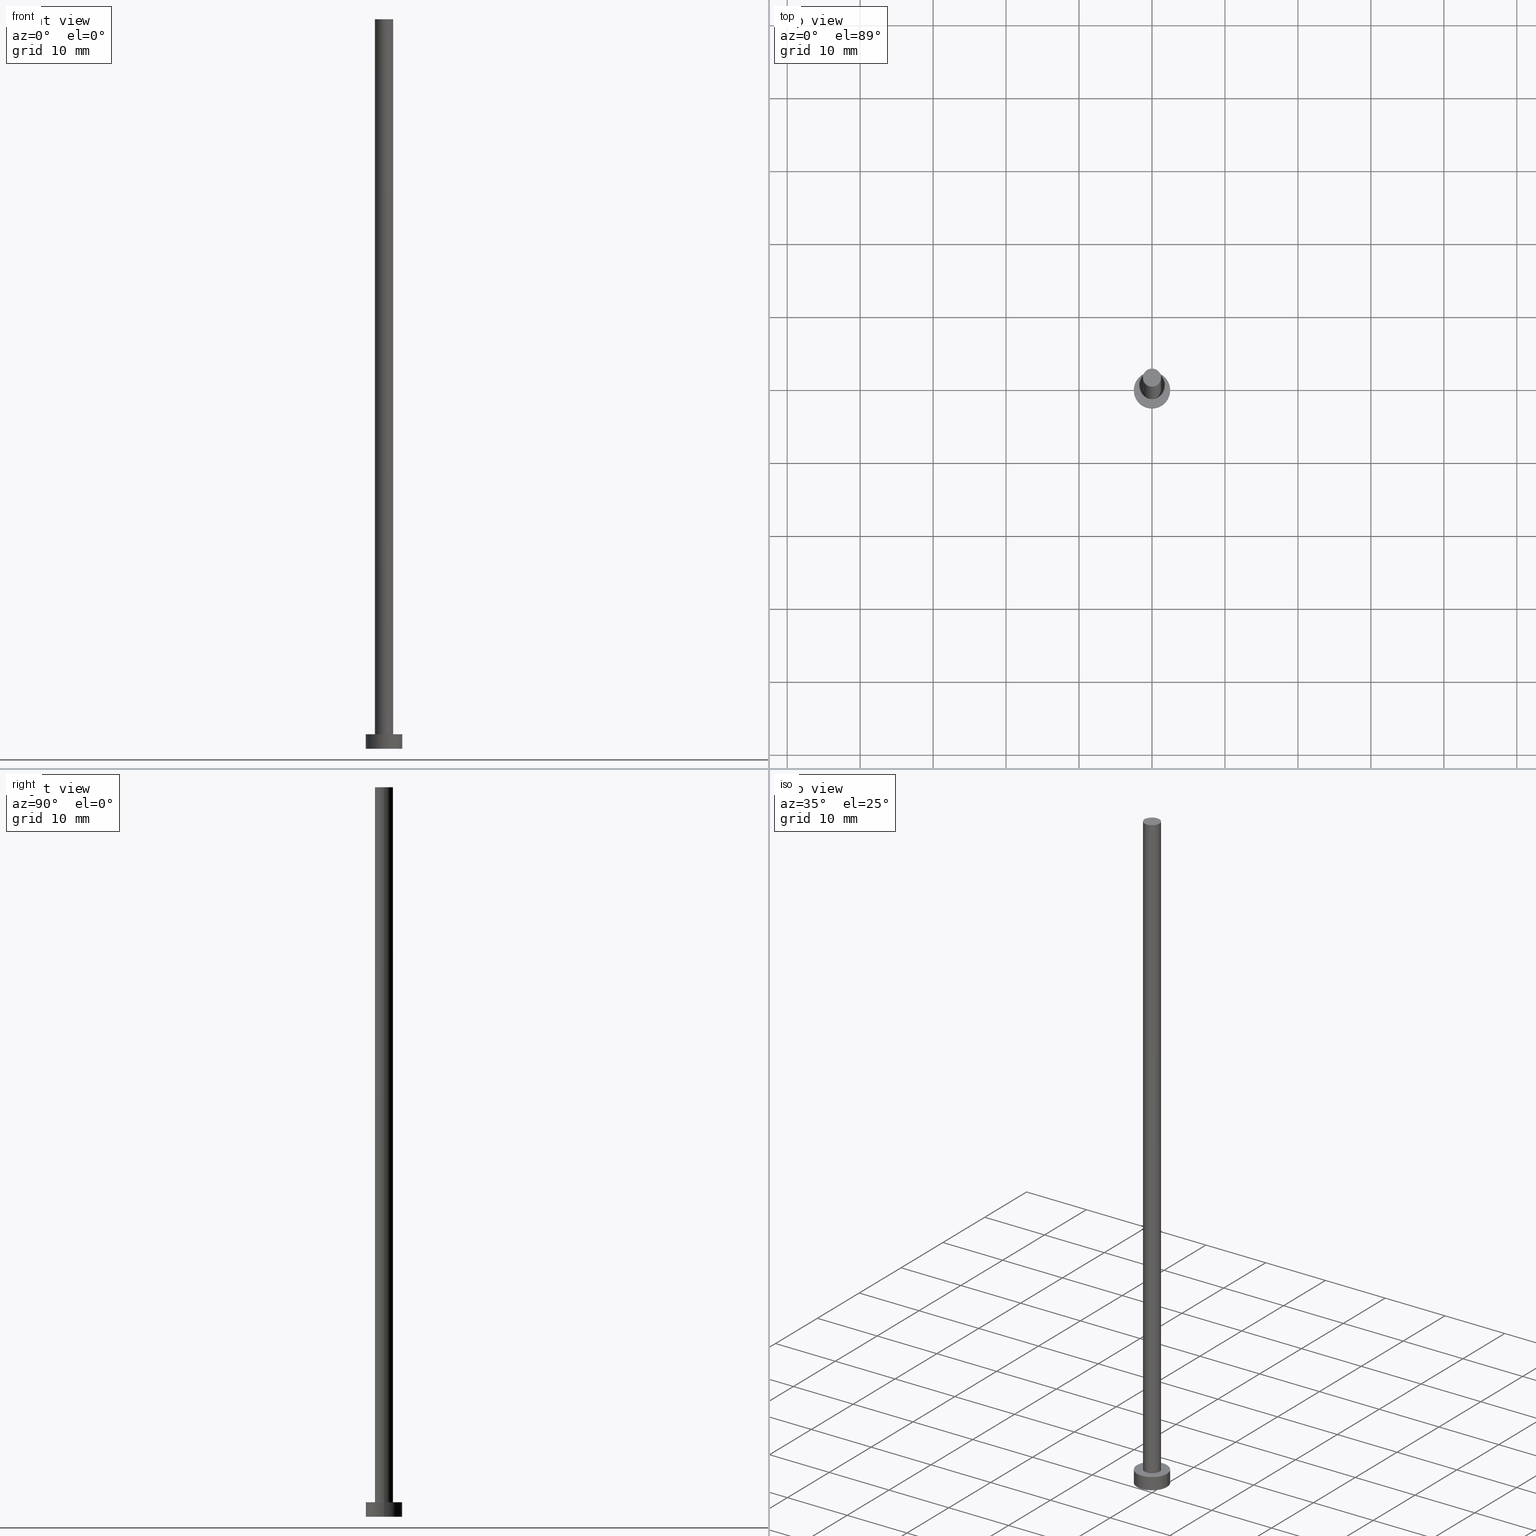
[diagram: canonical four-view strip — front | top / right | iso, engineering-drawing reading convention]
A machine part, canonical four-view strip (front | top / right | iso — engineering-drawing reading convention). The complete STEP part file that produces these views, byte-faithful:
ISO-10303-21;
HEADER;
FILE_DESCRIPTION (( 'STEP AP203' ),
    '1' );
FILE_NAME ('b72d.STEP',
    '2023-02-13T17:05:10',
    ( '' ),
    ( '' ),
    'SwSTEP 2.0',
    'SolidWorks 2019',
    '' );
FILE_SCHEMA (( 'CONFIG_CONTROL_DESIGN' ));
ENDSEC;

DATA;
#1 = DIRECTION ( 'NONE',  ( 0.000000000000000000, 0.000000000000000000, 1.000000000000000000 ) ) ;
#2 = DATE_AND_TIME ( #242, #19 ) ;
#3 = PRODUCT ( 'b72d', 'b72d', '', ( #71 ) ) ;
#4 = VECTOR ( 'NONE', #185, 1000.000000000000000 ) ;
#5 = CARTESIAN_POINT ( 'NONE',  ( 0.000000000000000000, 0.000000000000000000, 100.0000000000000000 ) ) ;
#6 = CALENDAR_DATE ( 2023, 13, 2 ) ;
#7 = EDGE_LOOP ( 'NONE', ( #148, #129, #60, #243 ) ) ;
#8 = CARTESIAN_POINT ( 'NONE',  ( 0.000000000000000000, 0.000000000000000000, 100.0000000000000000 ) ) ;
#9 = CARTESIAN_POINT ( 'NONE',  ( 0.000000000000000000, 0.000000000000000000, 100.0000000000000000 ) ) ;
#10 = FACE_OUTER_BOUND ( 'NONE', #235, .T. ) ;
#11 = DIRECTION ( 'NONE',  ( 0.000000000000000000, 0.000000000000000000, 1.000000000000000000 ) ) ;
#12 = AXIS2_PLACEMENT_3D ( 'NONE', #173, #1, #153 ) ;
#13 = AXIS2_PLACEMENT_3D ( 'NONE', #54, #33, #106 ) ;
#14 = MANIFOLD_SOLID_BREP ( 'P�idat vysunut�m3', #137 ) ;
#15 = FACE_OUTER_BOUND ( 'NONE', #64, .T. ) ;
#16 = APPLICATION_CONTEXT ( 'configuration controlled 3d designs of mechanical parts and assemblies' ) ;
#17 = APPROVAL ( #197, 'NEUR�EN�' ) ;
#18 = DESIGN_CONTEXT ( 'detailed design', #132, 'design' ) ;
#19 = LOCAL_TIME ( 18, 5, 10.00000000000000000, #58 ) ;
#20 = DIRECTION ( 'NONE',  ( 1.000000000000000000, 0.000000000000000000, 0.000000000000000000 ) ) ;
#21 = ORIENTED_EDGE ( 'NONE', *, *, #170, .T. ) ;
#22 = DIRECTION ( 'NONE',  ( 0.000000000000000000, 0.000000000000000000, 1.000000000000000000 ) ) ;
#23 = FACE_OUTER_BOUND ( 'NONE', #214, .T. ) ;
#24 = DIRECTION ( 'NONE',  ( 1.000000000000000000, 0.000000000000000000, 0.000000000000000000 ) ) ;
#25 = EDGE_CURVE ( 'NONE', #203, #169, #177, .T. ) ;
#26 = LINE ( 'NONE', #136, #86 ) ;
#27 = PRODUCT_DEFINITION ( 'NEZN�M�', '', #168, #18 ) ;
#28 = LOCAL_TIME ( 18, 5, 10.00000000000000000, #72 ) ;
#29 = CIRCLE ( 'NONE', #12, 1.250000000000000000 ) ;
#30 = EDGE_CURVE ( 'NONE', #250, #220, #229, .T. ) ;
#31 = DIRECTION ( 'NONE',  ( -1.000000000000000000, 0.000000000000000000, 0.000000000000000000 ) ) ;
#32 = LINE ( 'NONE', #103, #158 ) ;
#33 = DIRECTION ( 'NONE',  ( 0.000000000000000000, 0.000000000000000000, 1.000000000000000000 ) ) ;
#34 = ORGANIZATION ( 'NEUR�EN�', 'NEUR�EN�', '' ) ;
#35 = CC_DESIGN_PERSON_AND_ORGANIZATION_ASSIGNMENT ( #38, #115, ( #3 ) ) ;
#36 = DIRECTION ( 'NONE',  ( 0.000000000000000000, 0.000000000000000000, 1.000000000000000000 ) ) ;
#37 = CARTESIAN_POINT ( 'NONE',  ( 0.000000000000000000, 0.000000000000000000, 2.000000000000000000 ) ) ;
#38 = PERSON_AND_ORGANIZATION ( #152, #34 ) ;
#39 = DIRECTION ( 'NONE',  ( 1.000000000000000000, 0.000000000000000000, -0.000000000000000000 ) ) ;
#40 = PERSON_AND_ORGANIZATION_ROLE ( 'classification_officer' ) ;
#41 = AXIS2_PLACEMENT_3D ( 'NONE', #105, #230, #68 ) ;
#42 = CARTESIAN_POINT ( 'NONE',  ( -1.250000000000000000, 0.000000000000000000, 100.0000000000000000 ) ) ;
#43 = CARTESIAN_POINT ( 'NONE',  ( -2.500000000000000000, 0.000000000000000000, 2.000000000000000000 ) ) ;
#44 = CC_DESIGN_DATE_AND_TIME_ASSIGNMENT ( #176, #254, ( #94 ) ) ;
#45 = CYLINDRICAL_SURFACE ( 'NONE', #117, 1.250000000000000000 ) ;
#46 = ADVANCED_FACE ( 'NONE', ( #15 ), #174, .T. ) ;
#47 = CC_DESIGN_APPROVAL ( #17, ( #27 ) ) ;
#48 = CARTESIAN_POINT ( 'NONE',  ( 0.000000000000000000, 0.000000000000000000, 100.0000000000000000 ) ) ;
#49 = CALENDAR_DATE ( 2023, 13, 2 ) ;
#50 = LOCAL_TIME ( 18, 5, 10.00000000000000000, #193 ) ;
#51 = PERSON_AND_ORGANIZATION_ROLE ( 'creator' ) ;
#52 = AXIS2_PLACEMENT_3D ( 'NONE', #80, #22, #222 ) ;
#53 = EDGE_LOOP ( 'NONE', ( #21, #140 ) ) ;
#54 = CARTESIAN_POINT ( 'NONE',  ( 0.000000000000000000, 0.000000000000000000, 0.000000000000000000 ) ) ;
#55 = DATE_TIME_ROLE ( 'creation_date' ) ;
#56 = EDGE_CURVE ( 'NONE', #87, #109, #57, .T. ) ;
#57 = CIRCLE ( 'NONE', #201, 1.250000000000000000 ) ;
#58 = COORDINATED_UNIVERSAL_TIME_OFFSET ( 1, 0, .AHEAD. ) ;
#59 = ADVANCED_FACE ( 'NONE', ( #23 ), #93, .T. ) ;
#60 = ORIENTED_EDGE ( 'NONE', *, *, #82, .T. ) ;
#61 = CIRCLE ( 'NONE', #74, 1.250000000000000000 ) ;
#62 = DIRECTION ( 'NONE',  ( 0.000000000000000000, 0.000000000000000000, 1.000000000000000000 ) ) ;
#63 = CARTESIAN_POINT ( 'NONE',  ( 0.000000000000000000, 0.000000000000000000, 2.000000000000000000 ) ) ;
#64 = EDGE_LOOP ( 'NONE', ( #141, #234, #154, #166 ) ) ;
#65 = AXIS2_PLACEMENT_3D ( 'NONE', #77, #113, #241 ) ;
#66 = ORIENTED_EDGE ( 'NONE', *, *, #69, .F. ) ;
#67 = APPROVAL_PERSON_ORGANIZATION ( #110, #17, #90 ) ;
#68 = DIRECTION ( 'NONE',  ( 1.000000000000000000, 0.000000000000000000, 0.000000000000000000 ) ) ;
#69 = EDGE_CURVE ( 'NONE', #87, #169, #26, .T. ) ;
#70 = DIRECTION ( 'NONE',  ( -1.000000000000000000, 0.000000000000000000, 0.000000000000000000 ) ) ;
#71 = MECHANICAL_CONTEXT ( 'NONE', #16, 'mechanical' ) ;
#72 = COORDINATED_UNIVERSAL_TIME_OFFSET ( 1, 0, .AHEAD. ) ;
#73 = ORIENTED_EDGE ( 'NONE', *, *, #56, .F. ) ;
#74 = AXIS2_PLACEMENT_3D ( 'NONE', #255, #238, #130 ) ;
#75 = PERSON_AND_ORGANIZATION ( #152, #34 ) ;
#76 = EDGE_CURVE ( 'NONE', #109, #87, #61, .T. ) ;
#77 = CARTESIAN_POINT ( 'NONE',  ( 0.000000000000000000, 0.000000000000000000, 2.000000000000000000 ) ) ;
#78 = DIRECTION ( 'NONE',  ( 1.000000000000000000, 0.000000000000000000, -0.000000000000000000 ) ) ;
#79 = AXIS2_PLACEMENT_3D ( 'NONE', #213, #36, #190 ) ;
#80 = CARTESIAN_POINT ( 'NONE',  ( 0.000000000000000000, 0.000000000000000000, 2.000000000000000000 ) ) ;
#81 = APPROVAL_PERSON_ORGANIZATION ( #124, #251, #143 ) ;
#82 = EDGE_CURVE ( 'NONE', #220, #250, #89, .T. ) ;
#83 = DATE_AND_TIME ( #151, #50 ) ;
#84 = DIRECTION ( 'NONE',  ( -0.000000000000000000, -0.000000000000000000, -1.000000000000000000 ) ) ;
#85 = CC_DESIGN_APPROVAL ( #123, ( #94 ) ) ;
#86 = VECTOR ( 'NONE', #172, 1000.000000000000000 ) ;
#87 = VERTEX_POINT ( 'NONE', #178 ) ;
#88 = PERSON_AND_ORGANIZATION_ROLE ( 'creator' ) ;
#89 = CIRCLE ( 'NONE', #159, 2.500000000000000000 ) ;
#90 = APPROVAL_ROLE ( '' ) ;
#91 = CARTESIAN_POINT ( 'NONE',  ( 0.000000000000000000, 0.000000000000000000, 0.000000000000000000 ) ) ;
#92 = DIRECTION ( 'NONE',  ( -0.000000000000000000, -0.000000000000000000, -1.000000000000000000 ) ) ;
#93 = PLANE ( 'NONE',  #208 ) ;
#94 = SECURITY_CLASSIFICATION ( '', '', #218 ) ;
#95 = APPROVAL_DATE_TIME ( #2, #251 ) ;
#96 = CARTESIAN_POINT ( 'NONE',  ( -2.500000000000000000, 0.000000000000000000, 0.000000000000000000 ) ) ;
#97 = ADVANCED_FACE ( 'NONE', ( #156, #181 ), #191, .T. ) ;
#98 = ORIENTED_EDGE ( 'NONE', *, *, #196, .T. ) ;
#99 = APPROVAL_PERSON_ORGANIZATION ( #149, #123, #236 ) ;
#100 = CARTESIAN_POINT ( 'NONE',  ( -1.250000000000000000, 0.000000000000000000, 2.000000000000000000 ) ) ;
#101 = VECTOR ( 'NONE', #92, 1000.000000000000000 ) ;
#102 = PLANE ( 'NONE',  #200 ) ;
#103 = CARTESIAN_POINT ( 'NONE',  ( -1.250000000000000000, 0.000000000000000000, 100.0000000000000000 ) ) ;
#104 = AXIS2_PLACEMENT_3D ( 'NONE', #63, #84, #70 ) ;
#105 = CARTESIAN_POINT ( 'NONE',  ( 0.000000000000000000, 0.000000000000000000, 2.000000000000000000 ) ) ;
#106 = DIRECTION ( 'NONE',  ( 1.000000000000000000, 0.000000000000000000, 0.000000000000000000 ) ) ;
#107 = AXIS2_PLACEMENT_3D ( 'NONE', #91, #11, #187 ) ;
#108 = UNCERTAINTY_MEASURE_WITH_UNIT (LENGTH_MEASURE( 1.000000000000000082E-05 ), #180, 'distance_accuracy_value', 'NONE');
#109 = VERTEX_POINT ( 'NONE', #42 ) ;
#110 = PERSON_AND_ORGANIZATION ( #152, #34 ) ;
#111 = DIRECTION ( 'NONE',  ( 0.000000000000000000, 0.000000000000000000, 1.000000000000000000 ) ) ;
#112 = PERSON_AND_ORGANIZATION ( #152, #34 ) ;
#113 = DIRECTION ( 'NONE',  ( -0.000000000000000000, -0.000000000000000000, -1.000000000000000000 ) ) ;
#114 = EDGE_CURVE ( 'NONE', #183, #147, #192, .T. ) ;
#115 = PERSON_AND_ORGANIZATION_ROLE ( 'design_owner' ) ;
#116 = CARTESIAN_POINT ( 'NONE',  ( 0.000000000000000000, 0.000000000000000000, 0.000000000000000000 ) ) ;
#117 = AXIS2_PLACEMENT_3D ( 'NONE', #48, #121, #31 ) ;
#118 = EDGE_LOOP ( 'NONE', ( #73, #195, #223, #119 ) ) ;
#119 = ORIENTED_EDGE ( 'NONE', *, *, #196, .F. ) ;
#120 = DIRECTION ( 'NONE',  ( -0.000000000000000000, -0.000000000000000000, -1.000000000000000000 ) ) ;
#121 = DIRECTION ( 'NONE',  ( -0.000000000000000000, -0.000000000000000000, -1.000000000000000000 ) ) ;
#122 = SHAPE_DEFINITION_REPRESENTATION ( #239, #216 ) ;
#123 = APPROVAL ( #198, 'NEUR�EN�' ) ;
#124 = PERSON_AND_ORGANIZATION ( #152, #34 ) ;
#125 = EDGE_CURVE ( 'NONE', #147, #250, #150, .T. ) ;
#126 = APPROVAL_STATUS ( 'not_yet_approved' ) ;
#127 = ORIENTED_EDGE ( 'NONE', *, *, #56, .T. ) ;
#128 = APPLICATION_PROTOCOL_DEFINITION ( 'international standard', 'config_control_design', 1994, #132 ) ;
#129 = ORIENTED_EDGE ( 'NONE', *, *, #233, .T. ) ;
#130 = DIRECTION ( 'NONE',  ( 1.000000000000000000, 0.000000000000000000, 0.000000000000000000 ) ) ;
#131 = EDGE_CURVE ( 'NONE', #169, #203, #29, .T. ) ;
#132 = APPLICATION_CONTEXT ( 'configuration controlled 3d designs of mechanical parts and assemblies' ) ;
#133 = ORIENTED_EDGE ( 'NONE', *, *, #76, .T. ) ;
#134 = DIRECTION ( 'NONE',  ( 0.000000000000000000, 0.000000000000000000, 1.000000000000000000 ) ) ;
#135 = DIRECTION ( 'NONE',  ( 1.000000000000000000, 0.000000000000000000, 0.000000000000000000 ) ) ;
#136 = CARTESIAN_POINT ( 'NONE',  ( 1.250000000000000000, 1.530808498934191571E-16, 100.0000000000000000 ) ) ;
#137 = CLOSED_SHELL ( 'NONE', ( #188, #142, #46, #97, #240, #248, #59 ) ) ;
#138 = APPROVAL_DATE_TIME ( #83, #123 ) ;
#139 = CARTESIAN_POINT ( 'NONE',  ( 1.250000000000000000, 1.530808498934191571E-16, 2.000000000000000000 ) ) ;
#140 = ORIENTED_EDGE ( 'NONE', *, *, #114, .T. ) ;
#141 = ORIENTED_EDGE ( 'NONE', *, *, #233, .F. ) ;
#142 = ADVANCED_FACE ( 'NONE', ( #225 ), #206, .T. ) ;
#143 = APPROVAL_ROLE ( '' ) ;
#144 = CC_DESIGN_DATE_AND_TIME_ASSIGNMENT ( #209, #55, ( #27 ) ) ;
#145 = ORIENTED_EDGE ( 'NONE', *, *, #25, .T. ) ;
#146 = LOCAL_TIME ( 18, 5, 10.00000000000000000, #175 ) ;
#147 = VERTEX_POINT ( 'NONE', #43 ) ;
#148 = ORIENTED_EDGE ( 'NONE', *, *, #114, .F. ) ;
#149 = PERSON_AND_ORGANIZATION ( #152, #34 ) ;
#150 = LINE ( 'NONE', #215, #101 ) ;
#151 = CALENDAR_DATE ( 2023, 13, 2 ) ;
#152 = PERSON ( 'NEUR�EN�', 'NEUR�EN�', 'NEUR�EN�', ('NEUR�EN�'), ('NEUR�EN�'), ('NEUR�EN�') ) ;
#153 = DIRECTION ( 'NONE',  ( 1.000000000000000000, 0.000000000000000000, 0.000000000000000000 ) ) ;
#154 = ORIENTED_EDGE ( 'NONE', *, *, #125, .T. ) ;
#155 = CC_DESIGN_PERSON_AND_ORGANIZATION_ASSIGNMENT ( #221, #88, ( #168 ) ) ;
#156 = FACE_BOUND ( 'NONE', #205, .T. ) ;
#157 = DIRECTION ( 'NONE',  ( -0.000000000000000000, -0.000000000000000000, -1.000000000000000000 ) ) ;
#158 = VECTOR ( 'NONE', #120, 1000.000000000000000 ) ;
#159 = AXIS2_PLACEMENT_3D ( 'NONE', #116, #134, #24 ) ;
#160 = DIRECTION ( 'NONE',  ( -1.000000000000000000, 0.000000000000000000, 0.000000000000000000 ) ) ;
#161 = CARTESIAN_POINT ( 'NONE',  ( 0.000000000000000000, 0.000000000000000000, 0.000000000000000000 ) ) ;
#162 = CYLINDRICAL_SURFACE ( 'NONE', #231, 1.250000000000000000 ) ;
#163 = APPROVAL_DATE_TIME ( #219, #17 ) ;
#164 = CC_DESIGN_SECURITY_CLASSIFICATION ( #94, ( #168 ) ) ;
#165 = PRODUCT_RELATED_PRODUCT_CATEGORY ( 'detail', '', ( #3 ) ) ;
#166 = ORIENTED_EDGE ( 'NONE', *, *, #30, .T. ) ;
#167 = CC_DESIGN_PERSON_AND_ORGANIZATION_ASSIGNMENT ( #232, #51, ( #27 ) ) ;
#168 = PRODUCT_DEFINITION_FORMATION_WITH_SPECIFIED_SOURCE ( 'LIBOVOLN�', '', #3, .NOT_KNOWN. ) ;
#169 = VERTEX_POINT ( 'NONE', #139 ) ;
#170 = EDGE_CURVE ( 'NONE', #147, #183, #252, .T. ) ;
#171 = CALENDAR_DATE ( 2023, 13, 2 ) ;
#172 = DIRECTION ( 'NONE',  ( -0.000000000000000000, -0.000000000000000000, -1.000000000000000000 ) ) ;
#173 = CARTESIAN_POINT ( 'NONE',  ( 0.000000000000000000, 0.000000000000000000, 2.000000000000000000 ) ) ;
#174 = CYLINDRICAL_SURFACE ( 'NONE', #65, 2.500000000000000000 ) ;
#175 = COORDINATED_UNIVERSAL_TIME_OFFSET ( 1, 0, .AHEAD. ) ;
#176 = DATE_AND_TIME ( #171, #247 ) ;
#177 = CIRCLE ( 'NONE', #79, 1.250000000000000000 ) ;
#178 = CARTESIAN_POINT ( 'NONE',  ( 1.250000000000000000, 1.530808498934191571E-16, 100.0000000000000000 ) ) ;
#179 = PERSON_AND_ORGANIZATION_ROLE ( 'design_supplier' ) ;
#180 =( LENGTH_UNIT ( ) NAMED_UNIT ( * ) SI_UNIT ( .MILLI., .METRE. ) );
#181 = FACE_OUTER_BOUND ( 'NONE', #53, .T. ) ;
#182 = EDGE_LOOP ( 'NONE', ( #66, #253, #98, #145 ) ) ;
#183 = VERTEX_POINT ( 'NONE', #228 ) ;
#184 =( NAMED_UNIT ( * ) SI_UNIT ( $, .STERADIAN. ) SOLID_ANGLE_UNIT ( ) );
#185 = DIRECTION ( 'NONE',  ( -0.000000000000000000, -0.000000000000000000, -1.000000000000000000 ) ) ;
#186 = DIRECTION ( 'NONE',  ( 0.000000000000000000, 0.000000000000000000, 1.000000000000000000 ) ) ;
#187 = DIRECTION ( 'NONE',  ( 1.000000000000000000, 0.000000000000000000, 0.000000000000000000 ) ) ;
#188 = ADVANCED_FACE ( 'NONE', ( #245 ), #45, .T. ) ;
#189 = COORDINATED_UNIVERSAL_TIME_OFFSET ( 1, 0, .AHEAD. ) ;
#190 = DIRECTION ( 'NONE',  ( 1.000000000000000000, 0.000000000000000000, 0.000000000000000000 ) ) ;
#191 = PLANE ( 'NONE',  #52 ) ;
#192 = CIRCLE ( 'NONE', #217, 2.500000000000000000 ) ;
#193 = COORDINATED_UNIVERSAL_TIME_OFFSET ( 1, 0, .AHEAD. ) ;
#194 = FACE_OUTER_BOUND ( 'NONE', #182, .T. ) ;
#195 = ORIENTED_EDGE ( 'NONE', *, *, #69, .T. ) ;
#196 = EDGE_CURVE ( 'NONE', #109, #203, #32, .T. ) ;
#197 = APPROVAL_STATUS ( 'not_yet_approved' ) ;
#198 = APPROVAL_STATUS ( 'not_yet_approved' ) ;
#199 = ORIENTED_EDGE ( 'NONE', *, *, #25, .F. ) ;
#200 = AXIS2_PLACEMENT_3D ( 'NONE', #161, #186, #39 ) ;
#201 = AXIS2_PLACEMENT_3D ( 'NONE', #5, #62, #135 ) ;
#202 = CARTESIAN_POINT ( 'NONE',  ( 2.500000000000000000, 3.061616997868383141E-16, 2.000000000000000000 ) ) ;
#203 = VERTEX_POINT ( 'NONE', #100 ) ;
#204 =( GEOMETRIC_REPRESENTATION_CONTEXT ( 3 ) GLOBAL_UNCERTAINTY_ASSIGNED_CONTEXT ( ( #108 ) ) GLOBAL_UNIT_ASSIGNED_CONTEXT ( ( #180, #244, #184 ) ) REPRESENTATION_CONTEXT ( 'NONE', 'WORKASPACE' ) );
#205 = EDGE_LOOP ( 'NONE', ( #199, #211 ) ) ;
#206 = CYLINDRICAL_SURFACE ( 'NONE', #104, 2.500000000000000000 ) ;
#207 = LINE ( 'NONE', #202, #4 ) ;
#208 = AXIS2_PLACEMENT_3D ( 'NONE', #8, #224, #78 ) ;
#209 = DATE_AND_TIME ( #49, #28 ) ;
#210 = CC_DESIGN_APPROVAL ( #251, ( #168 ) ) ;
#211 = ORIENTED_EDGE ( 'NONE', *, *, #131, .F. ) ;
#212 = CC_DESIGN_PERSON_AND_ORGANIZATION_ASSIGNMENT ( #75, #179, ( #168 ) ) ;
#213 = CARTESIAN_POINT ( 'NONE',  ( 0.000000000000000000, 0.000000000000000000, 2.000000000000000000 ) ) ;
#214 = EDGE_LOOP ( 'NONE', ( #133, #127 ) ) ;
#215 = CARTESIAN_POINT ( 'NONE',  ( -2.500000000000000000, 0.000000000000000000, 2.000000000000000000 ) ) ;
#216 = ADVANCED_BREP_SHAPE_REPRESENTATION ( 'b72d', ( #14, #13 ), #204 ) ;
#217 = AXIS2_PLACEMENT_3D ( 'NONE', #37, #111, #20 ) ;
#218 = SECURITY_CLASSIFICATION_LEVEL ( 'unclassified' ) ;
#219 = DATE_AND_TIME ( #6, #146 ) ;
#220 = VERTEX_POINT ( 'NONE', #246 ) ;
#221 = PERSON_AND_ORGANIZATION ( #152, #34 ) ;
#222 = DIRECTION ( 'NONE',  ( 1.000000000000000000, 0.000000000000000000, -0.000000000000000000 ) ) ;
#223 = ORIENTED_EDGE ( 'NONE', *, *, #131, .T. ) ;
#224 = DIRECTION ( 'NONE',  ( 0.000000000000000000, 0.000000000000000000, 1.000000000000000000 ) ) ;
#225 = FACE_OUTER_BOUND ( 'NONE', #7, .T. ) ;
#226 = ORIENTED_EDGE ( 'NONE', *, *, #30, .F. ) ;
#227 = CC_DESIGN_PERSON_AND_ORGANIZATION_ASSIGNMENT ( #112, #40, ( #94 ) ) ;
#228 = CARTESIAN_POINT ( 'NONE',  ( 2.500000000000000000, 3.061616997868383141E-16, 2.000000000000000000 ) ) ;
#229 = CIRCLE ( 'NONE', #107, 2.500000000000000000 ) ;
#230 = DIRECTION ( 'NONE',  ( 0.000000000000000000, 0.000000000000000000, 1.000000000000000000 ) ) ;
#231 = AXIS2_PLACEMENT_3D ( 'NONE', #9, #157, #160 ) ;
#232 = PERSON_AND_ORGANIZATION ( #152, #34 ) ;
#233 = EDGE_CURVE ( 'NONE', #183, #220, #207, .T. ) ;
#234 = ORIENTED_EDGE ( 'NONE', *, *, #170, .F. ) ;
#235 = EDGE_LOOP ( 'NONE', ( #226, #237 ) ) ;
#236 = APPROVAL_ROLE ( '' ) ;
#237 = ORIENTED_EDGE ( 'NONE', *, *, #82, .F. ) ;
#238 = DIRECTION ( 'NONE',  ( 0.000000000000000000, 0.000000000000000000, 1.000000000000000000 ) ) ;
#239 = PRODUCT_DEFINITION_SHAPE ( 'NONE', 'NONE',  #27 ) ;
#240 = ADVANCED_FACE ( 'NONE', ( #10 ), #102, .F. ) ;
#241 = DIRECTION ( 'NONE',  ( -1.000000000000000000, 0.000000000000000000, 0.000000000000000000 ) ) ;
#242 = CALENDAR_DATE ( 2023, 13, 2 ) ;
#243 = ORIENTED_EDGE ( 'NONE', *, *, #125, .F. ) ;
#244 =( NAMED_UNIT ( * ) PLANE_ANGLE_UNIT ( ) SI_UNIT ( $, .RADIAN. ) );
#245 = FACE_OUTER_BOUND ( 'NONE', #118, .T. ) ;
#246 = CARTESIAN_POINT ( 'NONE',  ( 2.500000000000000000, 3.061616997868383141E-16, 0.000000000000000000 ) ) ;
#247 = LOCAL_TIME ( 18, 5, 10.00000000000000000, #189 ) ;
#248 = ADVANCED_FACE ( 'NONE', ( #194 ), #162, .T. ) ;
#249 = APPLICATION_PROTOCOL_DEFINITION ( 'international standard', 'config_control_design', 1994, #16 ) ;
#250 = VERTEX_POINT ( 'NONE', #96 ) ;
#251 = APPROVAL ( #126, 'NEUR�EN�' ) ;
#252 = CIRCLE ( 'NONE', #41, 2.500000000000000000 ) ;
#253 = ORIENTED_EDGE ( 'NONE', *, *, #76, .F. ) ;
#254 = DATE_TIME_ROLE ( 'classification_date' ) ;
#255 = CARTESIAN_POINT ( 'NONE',  ( 0.000000000000000000, 0.000000000000000000, 100.0000000000000000 ) ) ;
ENDSEC;
END-ISO-10303-21;
